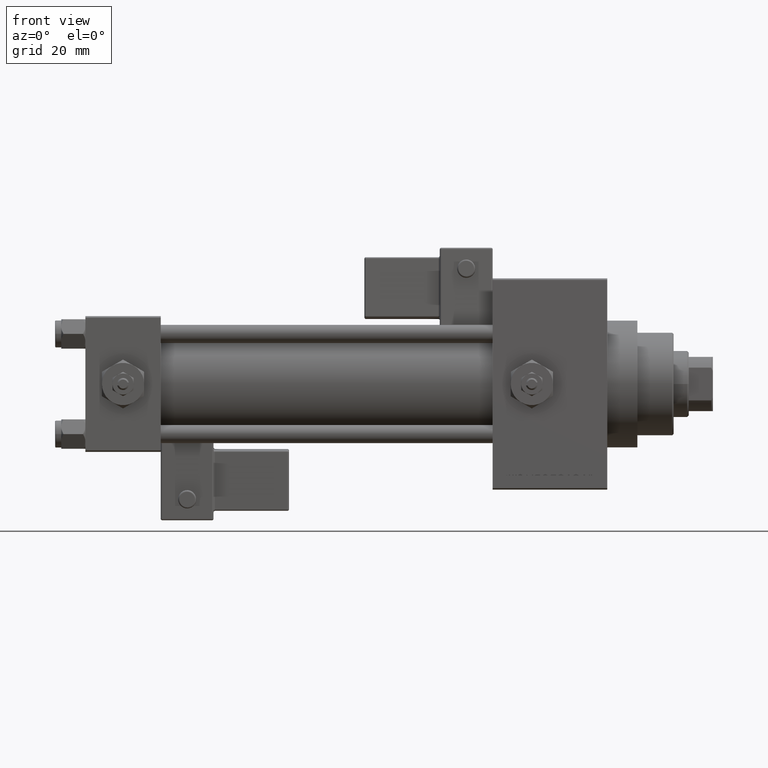
[diagram: clean part render]
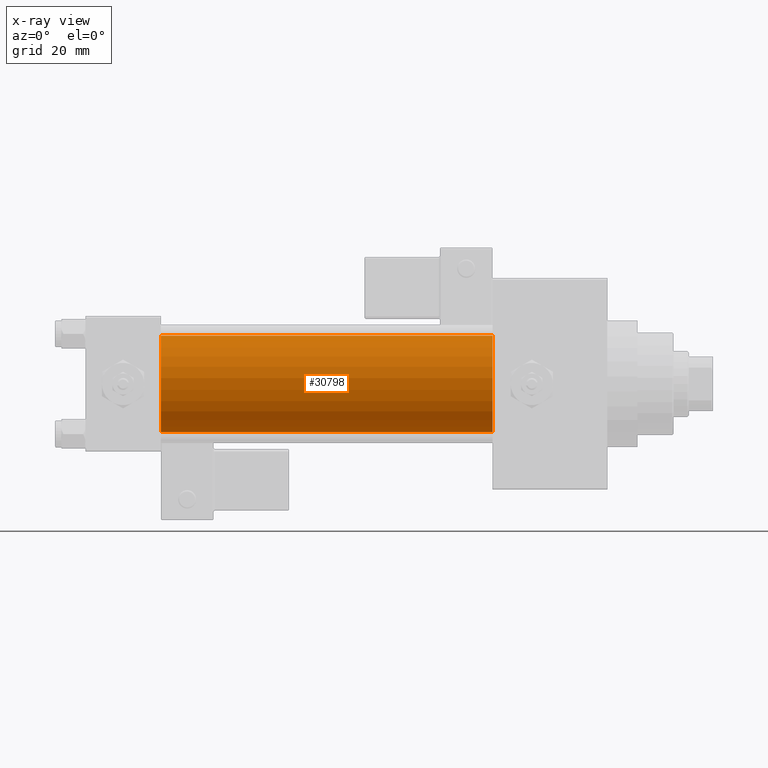
[diagram: x-ray — body ghosted, one internal face saturated and labeled with its STEP entity id]
A machine part, front view, then the same camera in x-ray: the body is ghosted and one INTERNAL B-rep face — a face not visible from any outside direction — is saturated and labeled: STEP entity #30798.
In plain terms, the highlighted cylindrical surface (partial cylindrical patch) has radius 16 mm, axis along (-1, -0, -0).
Its self-contained STEP definition (entity closure, byte-faithful):
#1095 = DIRECTION ( 'NONE',  ( 0.000000000000000000, 0.000000000000000000, -1.000000000000000000 ) ) ;
#3271 = VERTEX_POINT ( 'NONE', #17633 ) ;
#3443 = CIRCLE ( 'NONE', #32470, 16.00000000000000000 ) ;
#4482 = ORIENTED_EDGE ( 'NONE', *, *, #24180, .F. ) ;
#4622 = VERTEX_POINT ( 'NONE', #25839 ) ;
#5235 = DIRECTION ( 'NONE',  ( -1.000000000000000000, -0.000000000000000000, -0.000000000000000000 ) ) ;
#5443 = CARTESIAN_POINT ( 'NONE',  ( 25.00000000000000000, -2.602085213965210642E-15, 0.000000000000000000 ) ) ;
#5495 = LINE ( 'NONE', #32764, #12231 ) ;
#7117 = CYLINDRICAL_SURFACE ( 'NONE', #49991, 16.00000000000000000 ) ;
#8119 = EDGE_CURVE ( 'NONE', #36763, #3271, #35639, .T. ) ;
#8257 = VECTOR ( 'NONE', #28724, 1000.000000000000000 ) ;
#8742 = ORIENTED_EDGE ( 'NONE', *, *, #17489, .T. ) ;
#11508 = CARTESIAN_POINT ( 'NONE',  ( 135.0000000000000000, -2.602085213965210642E-15, 0.000000000000000000 ) ) ;
#12231 = VECTOR ( 'NONE', #5235, 1000.000000000000000 ) ;
#17489 = EDGE_CURVE ( 'NONE', #4622, #44458, #3443, .T. ) ;
#17633 = CARTESIAN_POINT ( 'NONE',  ( 25.00000000000000000, -6.426503353294456087E-16, -16.00000000000000000 ) ) ;
#23460 = DIRECTION ( 'NONE',  ( -1.000000000000000000, -0.000000000000000000, -0.000000000000000000 ) ) ;
#24180 = EDGE_CURVE ( 'NONE', #4622, #36763, #5495, .T. ) ;
#24797 = CARTESIAN_POINT ( 'NONE',  ( 135.0000000000000000, -6.426503353294456087E-16, -16.00000000000000000 ) ) ;
#24854 = AXIS2_PLACEMENT_3D ( 'NONE', #5443, #45440, #49353 ) ;
#25839 = CARTESIAN_POINT ( 'NONE',  ( 135.0000000000000000, -2.602085213965210642E-15, 16.00000000000000000 ) ) ;
#26856 = FACE_OUTER_BOUND ( 'NONE', #32512, .T. ) ;
#28724 = DIRECTION ( 'NONE',  ( -1.000000000000000000, -0.000000000000000000, -0.000000000000000000 ) ) ;
#30573 = ORIENTED_EDGE ( 'NONE', *, *, #8119, .F. ) ;
#30798 = ADVANCED_FACE ( 'NONE', ( #26856 ), #7117, .F. ) ;
#32436 = ORIENTED_EDGE ( 'NONE', *, *, #49622, .T. ) ;
#32470 = AXIS2_PLACEMENT_3D ( 'NONE', #40849, #44739, #1095 ) ;
#32512 = EDGE_LOOP ( 'NONE', ( #8742, #32436, #30573, #4482 ) ) ;
#32764 = CARTESIAN_POINT ( 'NONE',  ( 135.0000000000000000, -2.602085213965210642E-15, 16.00000000000000000 ) ) ;
#35306 = CARTESIAN_POINT ( 'NONE',  ( 135.0000000000000000, -6.426503353294456087E-16, -16.00000000000000000 ) ) ;
#35639 = CIRCLE ( 'NONE', #24854, 16.00000000000000000 ) ;
#36763 = VERTEX_POINT ( 'NONE', #45116 ) ;
#40420 = LINE ( 'NONE', #35306, #8257 ) ;
#40849 = CARTESIAN_POINT ( 'NONE',  ( 135.0000000000000000, -2.602085213965210642E-15, 0.000000000000000000 ) ) ;
#42710 = DIRECTION ( 'NONE',  ( 0.000000000000000000, 0.000000000000000000, 1.000000000000000000 ) ) ;
#44458 = VERTEX_POINT ( 'NONE', #24797 ) ;
#44739 = DIRECTION ( 'NONE',  ( 1.000000000000000000, 0.000000000000000000, 0.000000000000000000 ) ) ;
#45116 = CARTESIAN_POINT ( 'NONE',  ( 25.00000000000000000, -2.602085213965210642E-15, 16.00000000000000000 ) ) ;
#45440 = DIRECTION ( 'NONE',  ( 1.000000000000000000, 0.000000000000000000, 0.000000000000000000 ) ) ;
#49353 = DIRECTION ( 'NONE',  ( 0.000000000000000000, 0.000000000000000000, -1.000000000000000000 ) ) ;
#49622 = EDGE_CURVE ( 'NONE', #44458, #3271, #40420, .T. ) ;
#49991 = AXIS2_PLACEMENT_3D ( 'NONE', #11508, #23460, #42710 ) ;